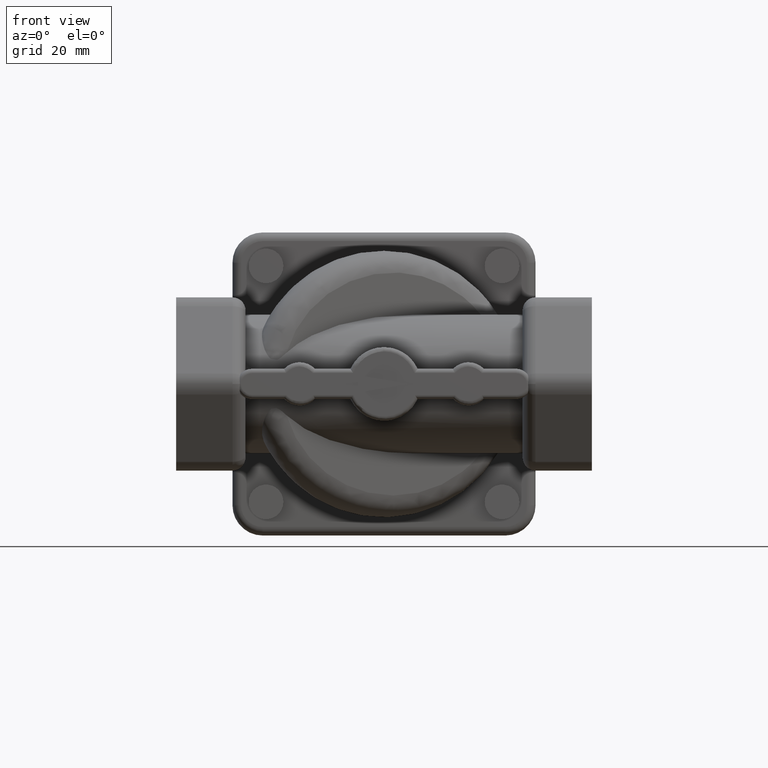
[diagram: clean part render]
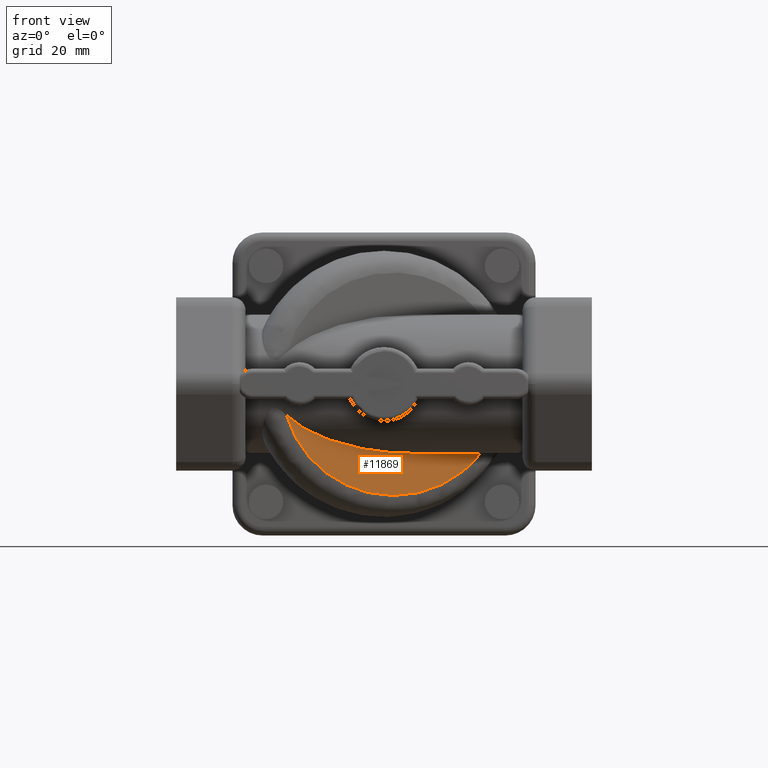
[diagram: same view with one face highlighted and labeled with its STEP entity id]
A machine part, front view. The second image highlights one B-rep face of the part: STEP entity #11869.
In plain terms, the highlighted planar face has unit normal (0.4382, -0.8989, 0).
Its self-contained STEP definition (entity closure, byte-faithful):
#26 = CARTESIAN_POINT ( 'NONE',  ( -20.36319458581620268, -38.02705736058539543, -12.42580160012713897 ) ) ;
#171 = CARTESIAN_POINT ( 'NONE',  ( 4.423582713334854866, -25.94350342724925440, -25.65393756765000077 ) ) ;
#244 = CARTESIAN_POINT ( 'NONE',  ( 4.824973519391740240, -25.74782540929654928, -25.61505854214109945 ) ) ;
#308 = CARTESIAN_POINT ( 'NONE',  ( -16.35503633411709856, -36.07308021288210398, -17.86461656853425239 ) ) ;
#389 = CARTESIAN_POINT ( 'NONE',  ( -16.17616533666824807, -35.98588060162574465, -18.04767874550574902 ) ) ;
#464 = CARTESIAN_POINT ( 'NONE',  ( -13.44477967953121933, -34.65433009377149176, -20.45958934761790005 ) ) ;
#598 = CARTESIAN_POINT ( 'NONE',  ( 12.12795699813259986, -22.18762096341034962, -23.75543963282860105 ) ) ;
#651 = ORIENTED_EDGE ( 'NONE', *, *, #12730, .T. ) ;
#732 = CARTESIAN_POINT ( 'NONE',  ( -5.955682096655776192, -31.00339502211966547, -16.00000000000001421 ) ) ;
#1250 = CARTESIAN_POINT ( 'NONE',  ( -7.577207805909369931, -31.79388880538080286, -23.82917219715950097 ) ) ;
#1326 = CARTESIAN_POINT ( 'NONE',  ( 4.664431010843379966, -25.82608988221385005, -25.63106396521525099 ) ) ;
#1400 = CARTESIAN_POINT ( 'NONE',  ( -17.39370721283285093, -36.57943226625599920, -16.73628142764034976 ) ) ;
#1465 = CARTESIAN_POINT ( 'NONE',  ( -10.18788158695342183, -33.06659227363980591, -22.57945305091379851 ) ) ;
#1538 = CARTESIAN_POINT ( 'NONE',  ( -12.72622587059842125, -34.30403511191674681, -20.99850843736869876 ) ) ;
#1836 = CARTESIAN_POINT ( 'NONE',  ( 15.26250786891654876, -20.65952741390314884, -22.18557303796194802 ) ) ;
#1901 = CARTESIAN_POINT ( 'NONE',  ( 15.16625368171255062, -20.70645133016514805, -22.24200715629019953 ) ) ;
#2064 = CARTESIAN_POINT ( 'NONE',  ( -20.15232130833615187, -37.92425663781384770, -12.79993265494350041 ) ) ;
#2195 = CARTESIAN_POINT ( 'NONE',  ( -20.57663575823949742, -38.13110993214174727, -12.03400747327760101 ) ) ;
#2350 = CARTESIAN_POINT ( 'NONE',  ( -20.25419268181995136, -37.97391893238719973, -12.62072956148264069 ) ) ;
#2412 = CARTESIAN_POINT ( 'NONE',  ( -18.38601679328759886, -37.06318318672770573, -15.48061944321314876 ) ) ;
#2493 = CARTESIAN_POINT ( 'NONE',  ( 8.663037004884090564, -23.87676946011900014, -24.92341873032745170 ) ) ;
#2565 = CARTESIAN_POINT ( 'NONE',  ( 11.17005830256488075, -22.65459657749964961, -24.13720124015430102 ) ) ;
#2631 = CARTESIAN_POINT ( 'NONE',  ( -15.56344680166160011, -35.68718031581000361, -18.66052188471704909 ) ) ;
#2707 = CARTESIAN_POINT ( 'NONE',  ( -18.44868039580205021, -37.09373169295349726, -15.39721048198734898 ) ) ;
#2834 = CARTESIAN_POINT ( 'NONE',  ( -22.52856129352373671, -39.08267363052814858, -7.211465451865020526 ) ) ;
#2846 = CARTESIAN_POINT ( 'NONE',  ( 18.01763214637229993, -19.31640432864350032, -20.31208614332440021 ) ) ;
#2918 = CARTESIAN_POINT ( 'NONE',  ( 17.26865498735805105, -19.68153069366294972, -20.87735603157529596 ) ) ;
#2955 = DIRECTION ( 'NONE',  ( 0.000000000000000000, 0.000000000000000000, -1.000000000000000000 ) ) ;
#2993 = CARTESIAN_POINT ( 'NONE',  ( 12.70121204096220069, -21.90815913003095261, -23.51470101877609764 ) ) ;
#3338 = CARTESIAN_POINT ( 'NONE',  ( 22.36680118331524980, -17.19618442313379703, -16.00000000000000000 ) ) ;
#3503 = CARTESIAN_POINT ( 'NONE',  ( -10.12020011256431928, -33.03359755487509375, -22.61643231194149806 ) ) ;
#3571 = CARTESIAN_POINT ( 'NONE',  ( 0.7985536929153519425, -27.71070507470379596, -25.71284441246750063 ) ) ;
#3647 = CARTESIAN_POINT ( 'NONE',  ( -5.293570032173809281, -30.68061539068474985, -24.67286384976934954 ) ) ;
#3721 = CARTESIAN_POINT ( 'NONE',  ( -4.037407247973543889, -30.06823603338710171, -25.01946241579880237 ) ) ;
#3788 = CARTESIAN_POINT ( 'NONE',  ( -1.149351583691434087, -28.66030889704959961, -25.54710102349894996 ) ) ;
#4167 = VERTEX_POINT ( 'NONE', #11473 ) ;
#4238 = CARTESIAN_POINT ( 'NONE',  ( -20.19912140037569870, -37.94707168268315201, -12.71795126664309983 ) ) ;
#4597 = CARTESIAN_POINT ( 'NONE',  ( -10.53249541424128033, -33.23459151444259874, -22.38792445935359510 ) ) ;
#4664 = CARTESIAN_POINT ( 'NONE',  ( -16.09897743307830353, -35.94825149862564473, -18.12567536095680154 ) ) ;
#4730 = CARTESIAN_POINT ( 'NONE',  ( -18.59366127098954635, -37.16440986960740389, -15.20177896811535057 ) ) ;
#4809 = CARTESIAN_POINT ( 'NONE',  ( -13.29263890663106018, -34.58016146698264492, -20.57475360365264905 ) ) ;
#4890 = CARTESIAN_POINT ( 'NONE',  ( -8.614555954471910582, -32.29959602780505179, -23.38877847372105023 ) ) ;
#4901 = EDGE_LOOP ( 'NONE', ( #9327, #9963, #651 ) ) ;
#5547 = VERTEX_POINT ( 'NONE', #9126 ) ;
#5557 = CARTESIAN_POINT ( 'NONE',  ( -20.98526756080975275, -38.33031793589475456, -11.24266640302445985 ) ) ;
#5685 = CARTESIAN_POINT ( 'NONE',  ( 2.735952431161065235, -26.76622318980894732, -25.75846070804549726 ) ) ;
#5771 = CARTESIAN_POINT ( 'NONE',  ( -18.34412351567360133, -37.04276021389090090, -15.53614821694979931 ) ) ;
#5837 = CARTESIAN_POINT ( 'NONE',  ( -9.481321259382040623, -32.72214411394875810, -22.96162899417994652 ) ) ;
#5855 = CARTESIAN_POINT ( 'NONE',  ( 6.769230769230879297, -24.80000000000000071, -16.00000000000000000 ) ) ;
#5904 = CARTESIAN_POINT ( 'NONE',  ( -7.127032465203850364, -31.57442832678689726, -24.00549507805610006 ) ) ;
#5986 = CARTESIAN_POINT ( 'NONE',  ( -16.02266148650249988, -35.91104747466994951, -18.20236367381314935 ) ) ;
#6053 = CARTESIAN_POINT ( 'NONE',  ( 19.65585585641134969, -18.51777026999950237, -19.03213902163519933 ) ) ;
#6192 = CARTESIAN_POINT ( 'NONE',  ( 11.91490106752504019, -22.29148572958154872, -23.84363076645929880 ) ) ;
#6267 = CARTESIAN_POINT ( 'NONE',  ( 17.99017902056329987, -19.32978772747539864, -20.33344667598500166 ) ) ;
#6849 = CARTESIAN_POINT ( 'NONE',  ( -14.07512641838743939, -34.96162412896389782, -19.96598416315529789 ) ) ;
#6935 = CARTESIAN_POINT ( 'NONE',  ( 9.290661555100312441, -23.57080249188859966, -24.75945895783324957 ) ) ;
#7001 = CARTESIAN_POINT ( 'NONE',  ( 11.66737219895836120, -22.41215605300779856, -23.94373529302929882 ) ) ;
#7067 = CARTESIAN_POINT ( 'NONE',  ( -13.26313165535913896, -34.56577668198760023, -20.59692900519969783 ) ) ;
#7150 = CARTESIAN_POINT ( 'NONE',  ( -13.65645282803725991, -34.75752075366815319, -20.29684082831354885 ) ) ;
#7278 = CARTESIAN_POINT ( 'NONE',  ( -16.79323194910304551, -36.28670057518774428, -12.74903210822068189 ) ) ;
#7289 = CARTESIAN_POINT ( 'NONE',  ( 21.09643766511474894, -17.81548663825655154, -17.60191171875015215 ) ) ;
#7500 = VERTEX_POINT ( 'NONE', #5855 ) ;
#7595 = CARTESIAN_POINT ( 'NONE',  ( -20.17539720916115087, -37.93550613946604955, -12.75956579552955894 ) ) ;
#7736 = CARTESIAN_POINT ( 'NONE',  ( -22.52856129352373671, -39.08267363052814858, -7.211465451865020526 ) ) ;
#7953 = CARTESIAN_POINT ( 'NONE',  ( 6.547579013837830253, -24.90805523075404793, -25.39257732127159883 ) ) ;
#8022 = CARTESIAN_POINT ( 'NONE',  ( -10.32596211293041932, -33.13390653005359354, -22.50320646819855241 ) ) ;
#8100 = CARTESIAN_POINT ( 'NONE',  ( 5.612789033386300197, -25.36376534622420209, -25.52944818861270093 ) ) ;
#8162 = CARTESIAN_POINT ( 'NONE',  ( -19.42898899642349875, -37.57163213575645244, -14.00649296321780035 ) ) ;
#8233 = CARTESIAN_POINT ( 'NONE',  ( 0.9634923161611539388, -27.63029749587144934, -25.72122831268200116 ) ) ;
#8384 = CARTESIAN_POINT ( 'NONE',  ( 17.85260840342765221, -19.39685340332900054, -20.43979775186579673 ) ) ;
#8453 = CARTESIAN_POINT ( 'NONE',  ( 12.02074313699000108, -22.23988772071739817, -23.80000635085629668 ) ) ;
#8485 = CARTESIAN_POINT ( 'NONE',  ( -59.89142823039269814, -57.29707126231649994, -66.50000000000000000 ) ) ;
#8532 = CARTESIAN_POINT ( 'NONE',  ( 14.40258554217932030, -21.07873954818759898, -22.67358754403890231 ) ) ;
#8685 = EDGE_CURVE ( 'NONE', #5547, #4167, #9847, .T. ) ;
#9051 = CARTESIAN_POINT ( 'NONE',  ( -16.04740129631089829, -35.92310813195155106, -18.17757119275729849 ) ) ;
#9111 = CARTESIAN_POINT ( 'NONE',  ( 4.907068050737589893, -25.70780432526544956, -25.60647738667514872 ) ) ;
#9126 = CARTESIAN_POINT ( 'NONE',  ( -22.52856129352373671, -39.08267363052814858, -7.211465451865020526 ) ) ;
#9181 = CARTESIAN_POINT ( 'NONE',  ( -2.115016617846355196, -29.13107060120009706, -25.39581860268405222 ) ) ;
#9260 = CARTESIAN_POINT ( 'NONE',  ( -18.32419842694050161, -37.03304673313350293, -15.56245400732534989 ) ) ;
#9327 = ORIENTED_EDGE ( 'NONE', *, *, #10317, .F. ) ;
#9331 = CARTESIAN_POINT ( 'NONE',  ( 0.4729405822876169840, -27.86944146613479845, -25.69316333271899921 ) ) ;
#9394 = CARTESIAN_POINT ( 'NONE',  ( 15.07143184473009967, -20.75267697569410430, -22.29723431505070153 ) ) ;
#9473 = CARTESIAN_POINT ( 'NONE',  ( 16.47462393821005122, -20.06862083012260101, -21.43792548803660125 ) ) ;
#9577 = FACE_OUTER_BOUND ( 'NONE', #4901, .T. ) ;
#9777 = CARTESIAN_POINT ( 'NONE',  ( -22.24232079497864945, -38.94313138755209991, -8.192645048454929579 ) ) ;
#9847 = B_SPLINE_CURVE_WITH_KNOTS ( 'NONE', 3,
 ( #7736, #9777, #12163, #5557, #2195, #26, #2350, #4238, #7595, #12029, #2064, #13762, #8162, #13699, #4730, #2707, #2412, #5771, #9260, #11490, #1400, #11424, #308, #389, #4664, #9051, #5986, #2631, #10419, #6849, #7150, #464, #13487, #4809, #7067, #1538, #13626, #12601, #4597, #8022, #1465, #3503, #5837, #4890, #1250, #5904, #11361, #10200, #3647, #3721, #9181, #3788, #11284, #9331, #3571, #8233, #12672, #5685, #10119, #171, #1326, #244, #9111, #8100, #7953, #12381, #13555, #12533, #12454, #10337, #2493, #6935, #10265, #2565, #7001, #6192, #8453, #11580, #598, #2993, #10701, #8532, #14131, #9394, #1901, #10765, #1836, #13909, #9473, #2918, #13829, #8384, #12815, #6267, #2846, #14045, #6053, #7289, #10631 ),
 .UNSPECIFIED., .F., .F.,
 ( 4, 1, 1, 1, 1, 1, 1, 2, 2, 1, 1, 1, 1, 2, 2, 1, 1, 1, 1, 2, 2, 1, 1, 1, 1, 2, 2, 1, 1, 1, 2, 2, 1, 1, 2, 2, 2, 1, 1, 2, 2, 1, 1, 1, 2, 2, 1, 1, 1, 1, 2, 2, 1, 1, 1, 1, 2, 2, 1, 1, 1, 1, 2, 2, 1, 1, 1, 1, 1, 2, 2, 4 ),
 ( 0.000000000000000000, 0.06249999999999719669, 0.09374999999999590605, 0.1093749999999952122, 0.1171874999999950040, 0.1210937499999950040, 0.1230468749999950040, 0.1240234374999950040, 0.1249999999999950040, 0.1562499999999940048, 0.1718749999999930056, 0.1796874999999930056, 0.1835937499999930056, 0.1855468749999924782, 0.1874999999999924782, 0.2187499999999895084, 0.2343749999999880096, 0.2421874999999875100, 0.2460937499999870104, 0.2480468749999870104, 0.2499999999999870104, 0.2812499999999864553, 0.2968749999999859557, 0.3046874999999859557, 0.3085937499999859557, 0.3105468749999859557, 0.3124999999999859557, 0.3437499999999859557, 0.3593749999999854561, 0.3671874999999854561, 0.3710937499999854561, 0.3749999999999854561, 0.4062499999999854561, 0.4218749999999854561, 0.4296874999999854561, 0.4374999999999854561, 0.4999999999999849565, 0.5312499999999850120, 0.5468749999999850120, 0.5546874999999850120, 0.5624999999999850120, 0.5937499999999850120, 0.6093749999999850120, 0.6171874999999850120, 0.6210937499999850120, 0.6249999999999850120, 0.6562499999999850120, 0.6718749999999850120, 0.6796874999999850120, 0.6835937499999850120, 0.6855468749999850120, 0.6874999999999850120, 0.7187499999999840128, 0.7343749999999840128, 0.7421874999999840128, 0.7460937499999840128, 0.7480468749999840128, 0.7499999999999840128, 0.7812499999999830136, 0.7968749999999820144, 0.8046874999999820144, 0.8085937499999820144, 0.8105468749999820144, 0.8124999999999820144, 0.8437499999999820144, 0.8593749999999820144, 0.8671874999999820144, 0.8710937499999820144, 0.8730468749999820144, 0.8740234374999819034, 0.8749999999999820144, 1.000000000000000000 ),
 .UNSPECIFIED. ) ;
#9963 = ORIENTED_EDGE ( 'NONE', *, *, #8685, .T. ) ;
#10119 = CARTESIAN_POINT ( 'NONE',  ( 3.861361609679574869, -26.21758621528120159, -25.69936758142905120 ) ) ;
#10200 = CARTESIAN_POINT ( 'NONE',  ( -6.676054390867929733, -31.35457651554809999, -24.17569317743189927 ) ) ;
#10265 = CARTESIAN_POINT ( 'NONE',  ( 10.16640587273700014, -23.14387713704070038, -24.49716071034439935 ) ) ;
#10317 = EDGE_CURVE ( 'NONE', #5547, #7500, #12646, .T. ) ;
#10337 = CARTESIAN_POINT ( 'NONE',  ( 8.623583692301119541, -23.89600295000320074, -24.93363228886359906 ) ) ;
#10419 = CARTESIAN_POINT ( 'NONE',  ( -14.89378277244040127, -35.36071910156469755, -19.28283232664064784 ) ) ;
#10428 = VECTOR ( 'NONE', #12221, 1000.000000000000000 ) ;
#10631 = CARTESIAN_POINT ( 'NONE',  ( 22.36680117258914180, -17.19618440113647395, -15.99999999999945288 ) ) ;
#10701 = CARTESIAN_POINT ( 'NONE',  ( 13.49720795564853937, -21.52011112162129791, -23.14809349646214898 ) ) ;
#10765 = CARTESIAN_POINT ( 'NONE',  ( 15.22939894114749926, -20.67566801619059902, -22.20504977313915163 ) ) ;
#11096 = AXIS2_PLACEMENT_3D ( 'NONE', #8485, #12923, #2955 ) ;
#11133 = LINE ( 'NONE', #3338, #10428 ) ;
#11284 = CARTESIAN_POINT ( 'NONE',  ( -0.01492036876757684045, -28.10727367977420244, -25.65902975401774810 ) ) ;
#11361 = CARTESIAN_POINT ( 'NONE',  ( -6.825671668566799966, -31.42751493842629884, -24.12028426836685213 ) ) ;
#11424 = CARTESIAN_POINT ( 'NONE',  ( -16.70784188530370074, -36.24507291908555118, -17.49421191758194993 ) ) ;
#11473 = CARTESIAN_POINT ( 'NONE',  ( 22.36680117258914180, -17.19618440113647395, -15.99999999999945288 ) ) ;
#11490 = CARTESIAN_POINT ( 'NONE',  ( -17.94774187955369982, -36.84952416628240712, -16.05727611391255039 ) ) ;
#11580 = CARTESIAN_POINT ( 'NONE',  ( 12.09125079855570029, -22.20551523570410168, -23.77076285697770075 ) ) ;
#11700 = CARTESIAN_POINT ( 'NONE',  ( 6.769230769230879297, -24.80000000000000071, -16.00000000000000000 ) ) ;
#11869 = ADVANCED_FACE ( 'NONE', ( #9577 ), #14011, .T. ) ;
#12029 = CARTESIAN_POINT ( 'NONE',  ( -20.15955392313970052, -37.92778253753065343, -12.78729727785783865 ) ) ;
#12163 = CARTESIAN_POINT ( 'NONE',  ( -21.72952899684444716, -38.69314538596164965, -9.628972996301980558 ) ) ;
#12221 = DIRECTION ( 'NONE',  ( -0.8988764044943807763, -0.4382022471910138606, 0.000000000000000000 ) ) ;
#12381 = CARTESIAN_POINT ( 'NONE',  ( 7.627367497307820265, -24.38165834506245133, -25.17310542033900234 ) ) ;
#12454 = CARTESIAN_POINT ( 'NONE',  ( 8.547163075015319578, -23.93325800093004929, -24.95322362372809977 ) ) ;
#12533 = CARTESIAN_POINT ( 'NONE',  ( 8.432483935572980371, -23.98916408140815193, -24.98234370985354857 ) ) ;
#12601 = CARTESIAN_POINT ( 'NONE',  ( -11.01029403705109821, -33.46751834306240170, -22.11254816197729767 ) ) ;
#12646 =( BOUNDED_CURVE ( )  B_SPLINE_CURVE ( 3, ( #2834, #7278, #732, #11700 ),
 .UNSPECIFIED., .F., .F. ) 
 B_SPLINE_CURVE_WITH_KNOTS ( ( 4, 4 ),
 ( 0.4675679290044009728, 1.570796326794899889 ),
 .UNSPECIFIED. ) 
 CURVE ( )  GEOMETRIC_REPRESENTATION_ITEM ( )  RATIONAL_B_SPLINE_CURVE ( ( 1.000000000000000000, 0.9011197937289829873, 0.9011197937289829873, 1.000000000000000000 ) ) 
 REPRESENTATION_ITEM ( '' )  );
#12672 = CARTESIAN_POINT ( 'NONE',  ( 1.769658327502919848, -27.23729156534234974, -25.75465441495974872 ) ) ;
#12730 = EDGE_CURVE ( 'NONE', #4167, #7500, #11133, .T. ) ;
#12815 = CARTESIAN_POINT ( 'NONE',  ( 17.94896981687324811, -19.34987721427430074, -20.36544377296725372 ) ) ;
#12923 = DIRECTION ( 'NONE',  ( 0.4382022471910110295, -0.8988764044943821085, 0.000000000000000000 ) ) ;
#13487 = CARTESIAN_POINT ( 'NONE',  ( -13.35356196874344015, -34.60986145976239925, -20.52876446733230154 ) ) ;
#13555 = CARTESIAN_POINT ( 'NONE',  ( 8.164561782278608959, -24.11977613113920071, -25.04842216428075119 ) ) ;
#13626 = CARTESIAN_POINT ( 'NONE',  ( -11.94944162834173973, -33.92535279381660018, -21.53625579360565112 ) ) ;
#13699 = CARTESIAN_POINT ( 'NONE',  ( -18.87868623198015072, -37.30335953809030514, -14.80767352299054096 ) ) ;
#13762 = CARTESIAN_POINT ( 'NONE',  ( -19.86682481016714874, -37.78507709495644917, -13.29753304994432028 ) ) ;
#13829 = CARTESIAN_POINT ( 'NONE',  ( 17.65905915719410046, -19.49120866086789761, -20.58728205342265127 ) ) ;
#13909 = CARTESIAN_POINT ( 'NONE',  ( 15.77135839412439822, -20.41146278286435134, -21.88485045098519777 ) ) ;
#14011 = PLANE ( 'NONE',  #11096 ) ;
#14045 = CARTESIAN_POINT ( 'NONE',  ( 18.03247138142980077, -19.30917020155300179, -20.30051427496015037 ) ) ;
#14131 = CARTESIAN_POINT ( 'NONE',  ( 14.84945325696054041, -20.86089153723170142, -22.42463527372969878 ) ) ;